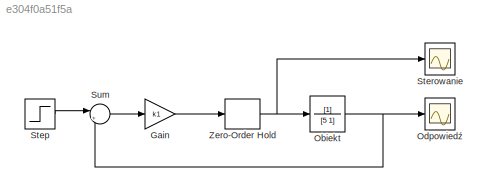
MODEL slx_e304f0a51f5a
KIND model
BLOCK [Gain] Gain
  Gain = k1
  OutDataTypeStr = Inherit: Inherit via internal rule
  ParamDataTypeStr = Inherit: Inherit via internal rule
  SaturateOnIntegerOverflow = off
BLOCK [TransferFcn] Obiekt
  Denominator = [5 1]
BLOCK [Scope] Odpowiedź
  Floating = off
  LimitDataPoints = off
  NumInputPorts = 1
  Ports = [1]
  SampleTime = 0
  SaveName = resp1
  SaveToWorkspace = on
  ShowLegends = off
BLOCK [Step] Step
  SampleTime = 0
BLOCK [Scope] Sterowanie
  Floating = off
  LimitDataPoints = off
  NumInputPorts = 1
  Ports = [1]
  SampleTime = 0
  SaveName = ster1
  SaveToWorkspace = on
  ShowLegends = off
BLOCK [Sum] Sum
  IconShape = round
  InputSameDT = off
  Inputs = |+-
  OutDataTypeStr = Inherit: Inherit via internal rule
  Ports = [2, 1]
  SaturateOnIntegerOverflow = off
BLOCK [ZeroOrderHold] Zero-Order Hold
  SampleTime = Tp1
LINE Gain:1 -> Zero-Order Hold:1
NET Obiekt:1 -> Odpowiedź:1, Sum:2
LINE Step:1 -> Sum:1
LINE Sum:1 -> Gain:1
NET Zero-Order Hold:1 -> Obiekt:1, Sterowanie:1
note: NET lines group one-source signal fan-out (src -> all destinations, sorted); 1:1 wires keep LINE
